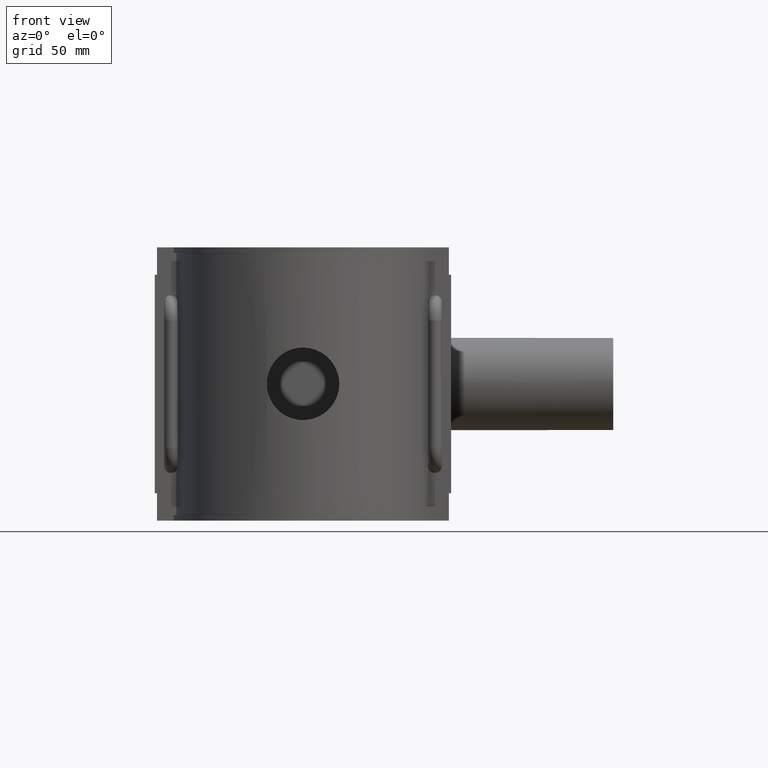
[diagram: clean part render]
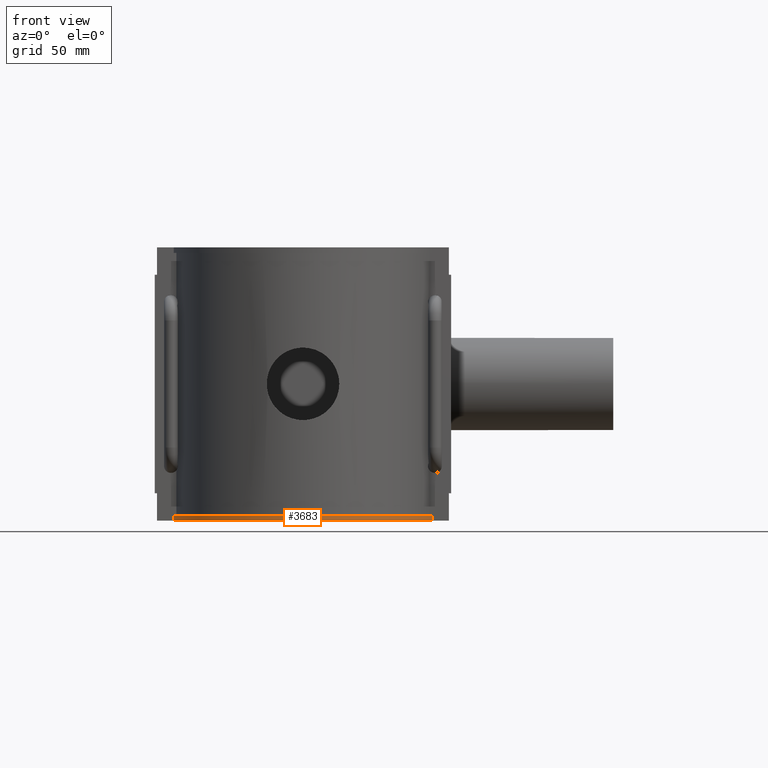
[diagram: same view with one face highlighted and labeled with its STEP entity id]
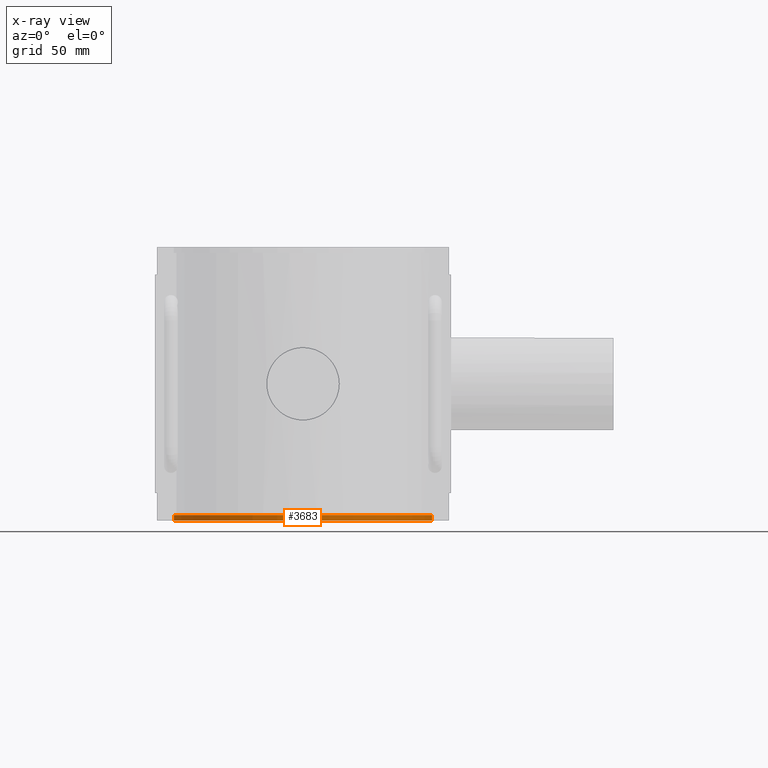
[diagram: x-ray of the same camera — body ghosted, the highlighted face saturated]
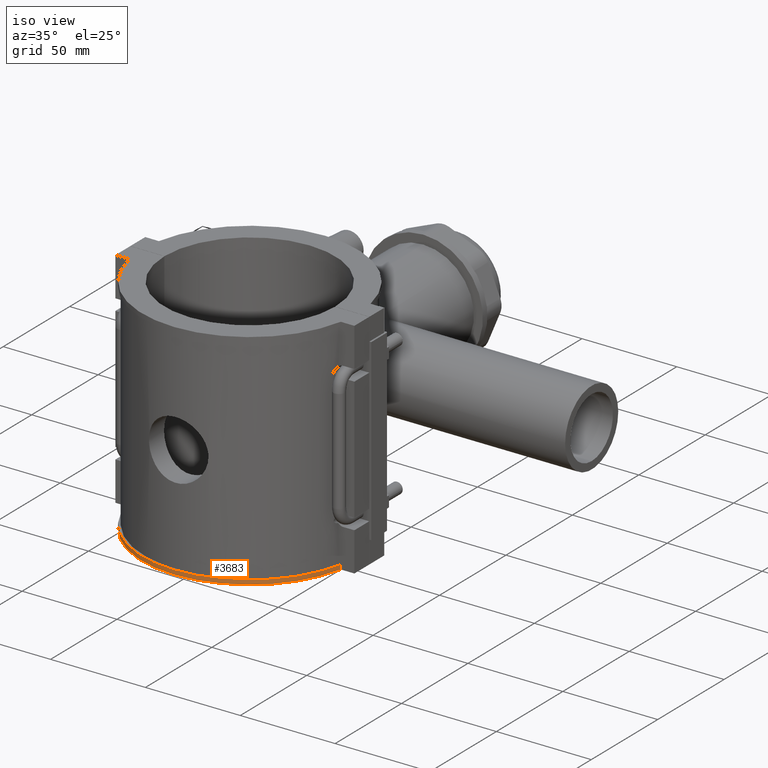
[diagram: same view with one face highlighted and labeled with its STEP entity id]
A machine part, front view. The second image highlights one B-rep face of the part: STEP entity #3683.
The next image is the same camera in x-ray: the body ghosted, the highlighted face saturated — about 0% of this face is hidden behind the body in this view.
A second angle (iso view) of the same face is appended — the face is thin or edge-on in the first view.
In plain terms, the highlighted cylindrical surface (partial cylindrical patch) has radius 56.916 mm, axis along (0, 0, -1).
Its self-contained STEP definition (entity closure, byte-faithful):
#113=LINE('',#6527,#412);
#114=LINE('',#6530,#413);
#412=VECTOR('',#4432,2.36);
#413=VECTOR('',#4435,2.36);
#824=CIRCLE('',#3935,56.916);
#825=CIRCLE('',#3936,56.916);
#1029=FACE_OUTER_BOUND('',#1264,.T.);
#1264=EDGE_LOOP('',(#2784,#2785,#2786,#2787));
#1676=VERTEX_POINT('',#6523);
#1677=VERTEX_POINT('',#6524);
#1678=VERTEX_POINT('',#6526);
#1679=VERTEX_POINT('',#6528);
#2091=EDGE_CURVE('',#1676,#1677,#824,.T.);
#2092=EDGE_CURVE('',#1678,#1677,#113,.T.);
#2093=EDGE_CURVE('',#1678,#1679,#825,.T.);
#2094=EDGE_CURVE('',#1676,#1679,#114,.T.);
#2784=ORIENTED_EDGE('',*,*,#2091,.T.);
#2785=ORIENTED_EDGE('',*,*,#2092,.F.);
#2786=ORIENTED_EDGE('',*,*,#2093,.T.);
#2787=ORIENTED_EDGE('',*,*,#2094,.F.);
#3572=CYLINDRICAL_SURFACE('',#3934,56.916);
#3683=ADVANCED_FACE('',(#1029),#3572,.T.);
#3934=AXIS2_PLACEMENT_3D('',#6522,#4428,#4429);
#3935=AXIS2_PLACEMENT_3D('',#6525,#4430,#4431);
#3936=AXIS2_PLACEMENT_3D('',#6529,#4433,#4434);
#4428=DIRECTION('center_axis',(0.,0.,-1.));
#4429=DIRECTION('ref_axis',(-0.980270697011944,-0.197659709044908,0.));
#4430=DIRECTION('center_axis',(0.,0.,1.));
#4431=DIRECTION('ref_axis',(-0.980270697011944,-0.197659709044908,0.));
#4432=DIRECTION('',(0.,0.,-1.));
#4433=DIRECTION('center_axis',(0.,0.,-1.));
#4434=DIRECTION('ref_axis',(-0.980270697011944,-0.197659709044908,0.));
#4435=DIRECTION('',(0.,0.,1.));
#6522=CARTESIAN_POINT('Origin',(0.,0.,-59.));
#6523=CARTESIAN_POINT('',(-55.7930869911318,-11.25,-59.));
#6524=CARTESIAN_POINT('',(55.7930869911318,-11.25,-59.));
#6525=CARTESIAN_POINT('Origin',(0.,0.,-59.));
#6526=CARTESIAN_POINT('',(55.7930869911318,-11.25,-56.64));
#6527=CARTESIAN_POINT('',(55.7930869911318,-11.25,-59.));
#6528=CARTESIAN_POINT('',(-55.7930869911318,-11.25,-56.64));
#6529=CARTESIAN_POINT('Origin',(0.,0.,-56.64));
#6530=CARTESIAN_POINT('',(-55.7930869911318,-11.25,-59.));